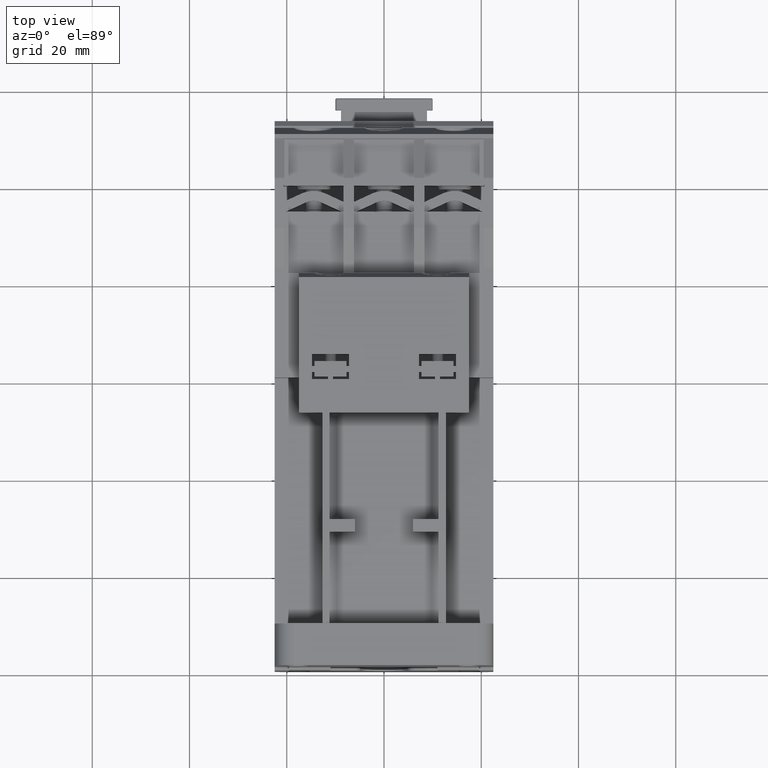
[diagram: clean part render]
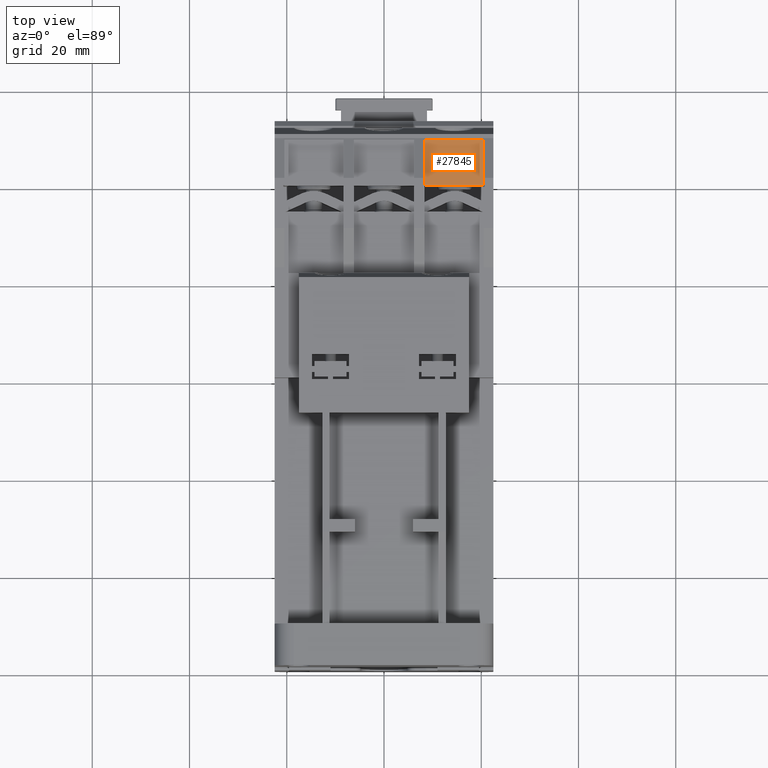
[diagram: same view with one face highlighted and labeled with its STEP entity id]
A machine part, top view. The second image highlights one B-rep face of the part: STEP entity #27845.
In plain terms, the highlighted planar face has unit normal (0, 0, -1).
Its self-contained STEP definition (entity closure, byte-faithful):
#455 = CARTESIAN_POINT ( 'NONE',  ( 0.3267716535433071168, 1.141732283464567121, 1.267716535433070835 ) ) ;
#2829 = DIRECTION ( 'NONE',  ( 1.000000000000000000, 0.000000000000000000, 0.000000000000000000 ) ) ;
#3881 = FACE_OUTER_BOUND ( 'NONE', #24551, .T. ) ;
#4198 = EDGE_CURVE ( 'NONE', #30332, #22724, #12078, .T. ) ;
#5015 = ORIENTED_EDGE ( 'NONE', *, *, #19093, .F. ) ;
#5298 = CARTESIAN_POINT ( 'NONE',  ( 0.8070866141732283561, 0.05905511811023622659, 1.267716535433070835 ) ) ;
#5979 = CARTESIAN_POINT ( 'NONE',  ( 0.8070866141732283561, 0.7677165354330708347, 1.267716535433070835 ) ) ;
#7834 = LINE ( 'NONE', #10375, #15817 ) ;
#10375 = CARTESIAN_POINT ( 'NONE',  ( 0.000000000000000000, 0.7677165354330708347, 1.267716535433070835 ) ) ;
#11154 = LINE ( 'NONE', #11357, #21002 ) ;
#11357 = CARTESIAN_POINT ( 'NONE',  ( 0.8070866141732283561, 1.141732283464567121, 1.267716535433070835 ) ) ;
#12078 = LINE ( 'NONE', #28470, #19867 ) ;
#12190 = PLANE ( 'NONE',  #26761 ) ;
#12593 = ORIENTED_EDGE ( 'NONE', *, *, #4198, .F. ) ;
#14172 = DIRECTION ( 'NONE',  ( 0.000000000000000000, -1.000000000000000000, 0.000000000000000000 ) ) ;
#15817 = VECTOR ( 'NONE', #32562, 39.37007874015748143 ) ;
#16057 = VERTEX_POINT ( 'NONE', #22554 ) ;
#17668 = DIRECTION ( 'NONE',  ( 0.000000000000000000, 1.000000000000000000, 0.000000000000000000 ) ) ;
#17770 = ORIENTED_EDGE ( 'NONE', *, *, #27796, .F. ) ;
#19093 = EDGE_CURVE ( 'NONE', #26225, #30332, #7834, .T. ) ;
#19867 = VECTOR ( 'NONE', #17668, 39.37007874015748143 ) ;
#21002 = VECTOR ( 'NONE', #2829, 39.37007874015748143 ) ;
#21993 = ORIENTED_EDGE ( 'NONE', *, *, #34147, .F. ) ;
#22554 = CARTESIAN_POINT ( 'NONE',  ( 0.8070866141732283561, 1.141732283464567121, 1.267716535433070835 ) ) ;
#22724 = VERTEX_POINT ( 'NONE', #455 ) ;
#23183 = CARTESIAN_POINT ( 'NONE',  ( 0.000000000000000000, 0.000000000000000000, 1.267716535433070835 ) ) ;
#24551 = EDGE_LOOP ( 'NONE', ( #5015, #21993, #17770, #12593 ) ) ;
#24859 = CARTESIAN_POINT ( 'NONE',  ( 0.3267716535433071168, 0.7677165354330708347, 1.267716535433070835 ) ) ;
#25173 = LINE ( 'NONE', #5298, #34917 ) ;
#26225 = VERTEX_POINT ( 'NONE', #5979 ) ;
#26761 = AXIS2_PLACEMENT_3D ( 'NONE', #23183, #34200, #28781 ) ;
#27796 = EDGE_CURVE ( 'NONE', #22724, #16057, #11154, .T. ) ;
#27845 = ADVANCED_FACE ( 'NONE', ( #3881 ), #12190, .F. ) ;
#28470 = CARTESIAN_POINT ( 'NONE',  ( 0.3267716535433071168, 0.05905511811023622659, 1.267716535433070835 ) ) ;
#28781 = DIRECTION ( 'NONE',  ( 0.000000000000000000, -1.000000000000000000, 0.000000000000000000 ) ) ;
#30332 = VERTEX_POINT ( 'NONE', #24859 ) ;
#32562 = DIRECTION ( 'NONE',  ( -1.000000000000000000, 0.000000000000000000, 0.000000000000000000 ) ) ;
#34147 = EDGE_CURVE ( 'NONE', #16057, #26225, #25173, .T. ) ;
#34200 = DIRECTION ( 'NONE',  ( 0.000000000000000000, 0.000000000000000000, -1.000000000000000000 ) ) ;
#34917 = VECTOR ( 'NONE', #14172, 39.37007874015748143 ) ;